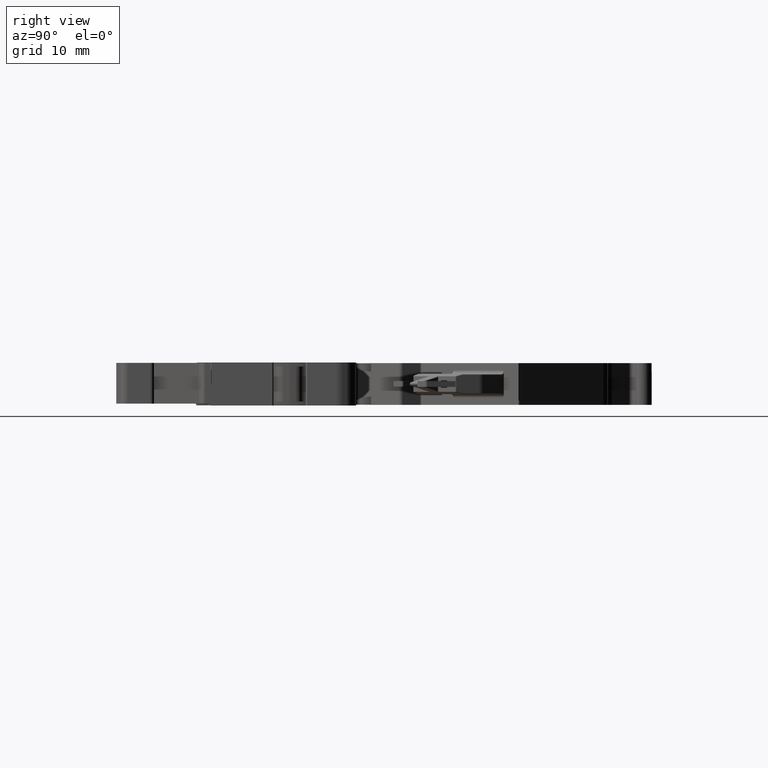
[diagram: clean part render]
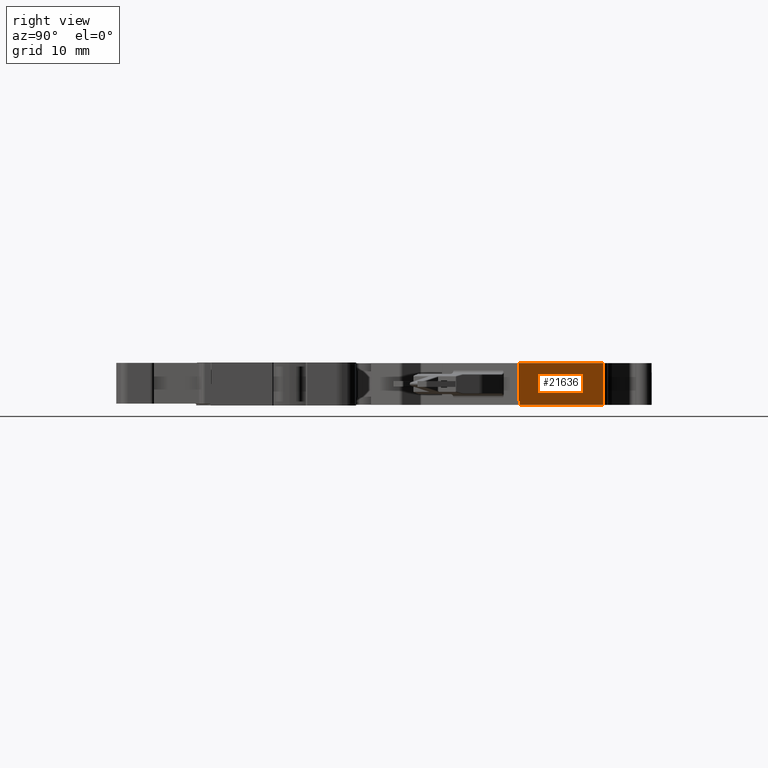
[diagram: same view with one face highlighted and labeled with its STEP entity id]
A machine part, right view. The second image highlights one B-rep face of the part: STEP entity #21636.
In plain terms, the highlighted planar face has unit normal (0.8141, 0.5807, -0).
Its self-contained STEP definition (entity closure, byte-faithful):
#1083 = VECTOR ( 'NONE', #12011, 1000.000000000000000 ) ;
#1108 = VECTOR ( 'NONE', #12385, 1000.000000000000000 ) ;
#1147 = VECTOR ( 'NONE', #2647, 1000.000000000000100 ) ;
#1148 = VECTOR ( 'NONE', #7637, 1000.000000000000000 ) ;
#1153 = VECTOR ( 'NONE', #6195, 1000.000000000000000 ) ;
#1166 = VECTOR ( 'NONE', #2604, 1000.000000000000100 ) ;
#2180 = CARTESIAN_POINT ( 'NONE',  ( 1578.243859838697300, 768.4322544557807100, 0.02500000000000453200 ) ) ;
#2208 = CARTESIAN_POINT ( 'NONE',  ( 1578.330965281572400, 768.3101371282060700, 5.774999999999986100 ) ) ;
#2580 = CARTESIAN_POINT ( 'NONE',  ( 1578.330965281448900, 768.3101371283789800, 5.775000000000004800 ) ) ;
#2604 = DIRECTION ( 'NONE',  ( -0.5807029556949440100, 0.8141155183677288900, 0.0000000000000000000 ) ) ;
#2608 = LINE ( 'NONE', #2580, #1166 ) ;
#2632 = CARTESIAN_POINT ( 'NONE',  ( 1569.989763542385600, 780.0040706808280200, 0.02500000000000487600 ) ) ;
#2641 = LINE ( 'NONE', #2632, #1147 ) ;
#2647 = DIRECTION ( 'NONE',  ( 0.5807029557112765000, -0.8141155183560789800, 0.0000000000000000000 ) ) ;
#5339 = VERTEX_POINT ( 'NONE', #18967 ) ;
#5391 = VERTEX_POINT ( 'NONE', #19084 ) ;
#5396 = VERTEX_POINT ( 'NONE', #19081 ) ;
#5410 = VERTEX_POINT ( 'NONE', #19053 ) ;
#5836 = LINE ( 'NONE', #6132, #1153 ) ;
#6132 = CARTESIAN_POINT ( 'NONE',  ( 1578.330965281819300, 768.3101371278598900, 58.64445883250650100 ) ) ;
#6195 = DIRECTION ( 'NONE',  ( -0.0000000000000000000, 0.0000000000000000000, 1.000000000000000000 ) ) ;
#7635 = LINE ( 'NONE', #7636, #1148 ) ;
#7636 = CARTESIAN_POINT ( 'NONE',  ( 1578.243859838697300, 768.4322544557805900, 58.64445883250650100 ) ) ;
#7637 = DIRECTION ( 'NONE',  ( -0.0000000000000000000, -0.0000000000000000000, 1.000000000000000000 ) ) ;
#9935 = AXIS2_PLACEMENT_3D ( 'NONE', #27824, #27811, #27855 ) ;
#10811 = EDGE_LOOP ( 'NONE', ( #22093, #22137, #22175, #22201, #22107, #22166 ) ) ;
#11954 = LINE ( 'NONE', #11995, #1083 ) ;
#11995 = CARTESIAN_POINT ( 'NONE',  ( 1569.989763542385600, 780.0040706808280200, 58.64445883250650100 ) ) ;
#12011 = DIRECTION ( 'NONE',  ( 0.0000000000000000000, 0.0000000000000000000, 1.000000000000000000 ) ) ;
#12315 = LINE ( 'NONE', #12354, #1108 ) ;
#12354 = CARTESIAN_POINT ( 'NONE',  ( 1569.989763542385600, 780.0040706808280200, 0.6250000000000075500 ) ) ;
#12385 = DIRECTION ( 'NONE',  ( -0.5807029557112662900, 0.8141155183560863100, 0.0000000000000000000 ) ) ;
#17155 = VERTEX_POINT ( 'NONE', #2180 ) ;
#17195 = VERTEX_POINT ( 'NONE', #2208 ) ;
#18835 = EDGE_CURVE ( 'NONE', #5410, #5339, #11954, .T. ) ;
#18872 = EDGE_CURVE ( 'NONE', #5396, #5391, #12315, .T. ) ;
#18967 = CARTESIAN_POINT ( 'NONE',  ( 1569.989763542385600, 780.0040706808280200, 5.775000000000003900 ) ) ;
#19052 = EDGE_CURVE ( 'NONE', #17155, #5391, #7635, .T. ) ;
#19053 = CARTESIAN_POINT ( 'NONE',  ( 1569.989763542385600, 780.0040706808280200, 0.02500000000000453200 ) ) ;
#19054 = EDGE_CURVE ( 'NONE', #5396, #17195, #5836, .T. ) ;
#19081 = CARTESIAN_POINT ( 'NONE',  ( 1578.330965281897500, 768.3101371279156000, 0.6249999999999751300 ) ) ;
#19084 = CARTESIAN_POINT ( 'NONE',  ( 1578.243859838697300, 768.4322544557807100, 0.6250000000000069900 ) ) ;
#19134 = EDGE_CURVE ( 'NONE', #17195, #5339, #2608, .T. ) ;
#19150 = EDGE_CURVE ( 'NONE', #5410, #17155, #2641, .T. ) ;
#21636 = ADVANCED_FACE ( 'NONE', ( #27840 ), #27839, .T. ) ;
#22093 = ORIENTED_EDGE ( 'NONE', *, *, #19052, .F. ) ;
#22107 = ORIENTED_EDGE ( 'NONE', *, *, #19054, .F. ) ;
#22137 = ORIENTED_EDGE ( 'NONE', *, *, #19150, .F. ) ;
#22166 = ORIENTED_EDGE ( 'NONE', *, *, #18872, .T. ) ;
#22175 = ORIENTED_EDGE ( 'NONE', *, *, #18835, .T. ) ;
#22201 = ORIENTED_EDGE ( 'NONE', *, *, #19134, .F. ) ;
#27811 = DIRECTION ( 'NONE',  ( 0.8141155183560863100, 0.5807029557112662900, -0.0000000000000000000 ) ) ;
#27824 = CARTESIAN_POINT ( 'NONE',  ( 1569.989763542385600, 780.0040706808280200, 58.64445883250650100 ) ) ;
#27839 = PLANE ( 'NONE',  #9935 ) ;
#27840 = FACE_OUTER_BOUND ( 'NONE', #10811, .T. ) ;
#27855 = DIRECTION ( 'NONE',  ( -0.5807029557112662900, 0.8141155183560863100, 0.0000000000000000000 ) ) ;